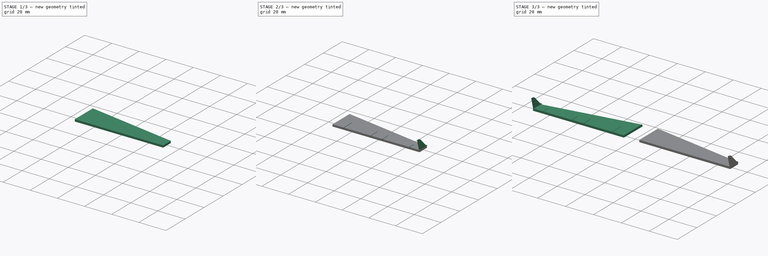
[diagram: build sequence overview — one tinted view per stage of 3, left to right]
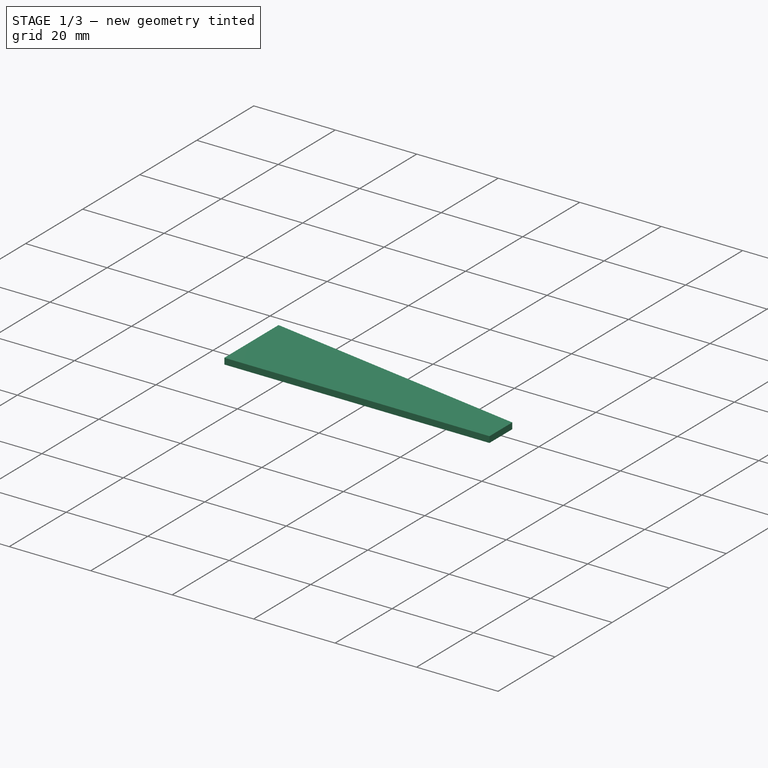
[diagram: stage 1 of 3 — iso view after this stage's code; geometry added in this stage tinted green]
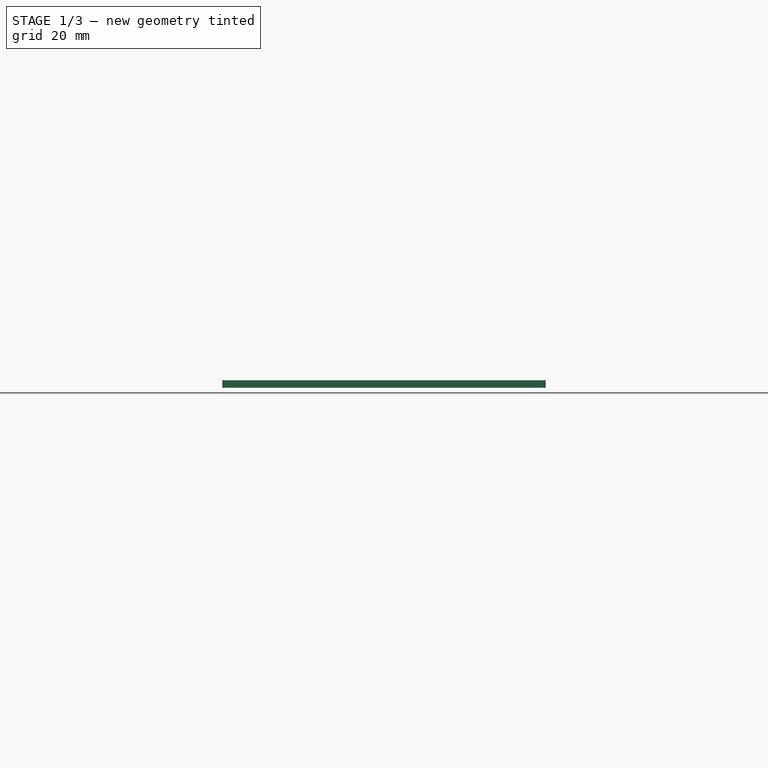
[diagram: stage 1 of 3 — front view after this stage's code; geometry added in this stage tinted green]
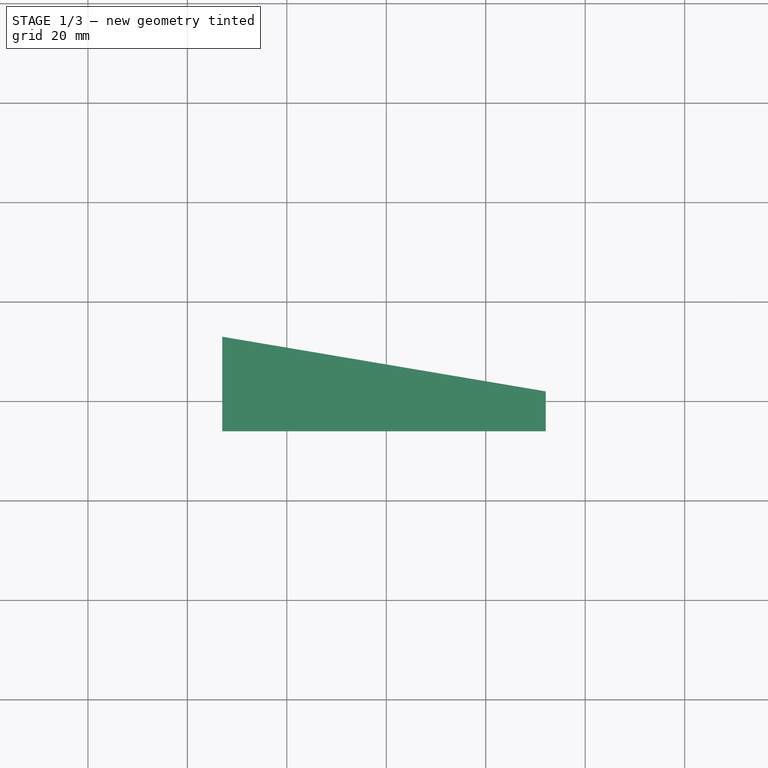
[diagram: stage 1 of 3 — top view after this stage's code; geometry added in this stage tinted green]
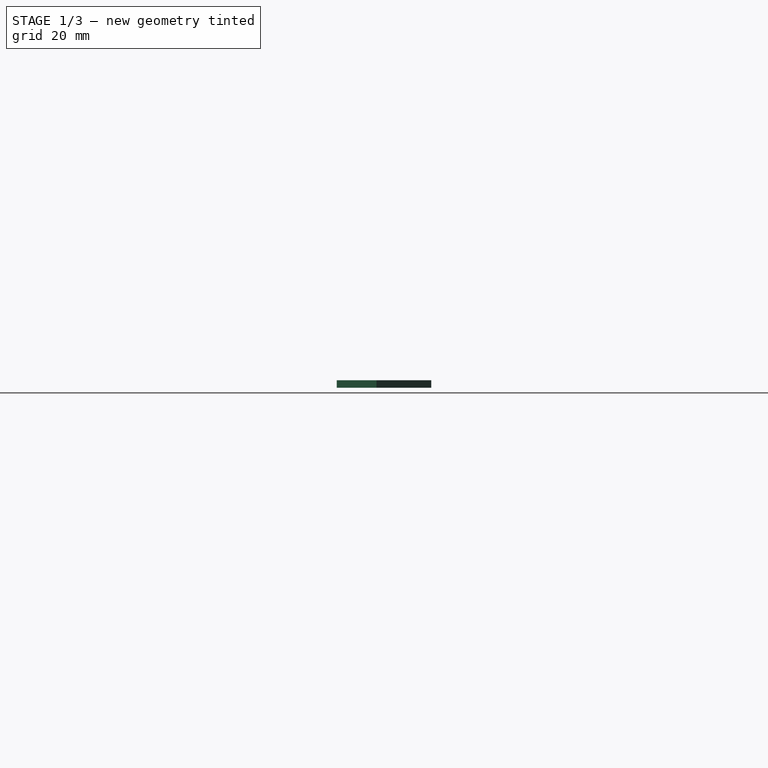
[diagram: stage 1 of 3 — right view after this stage's code; geometry added in this stage tinted green]
FCSTD DOCUMENT  (FreeCAD 0.17R13528 (Git))
Label: plane_wing
License: All rights reserved
LicenseURL: http://en.wikipedia.org/wiki/All_rights_reserved
objects: Sketcher::SketchObject×5, PartDesign::Pad×3, PartDesign::SubtractiveBox×1, PartDesign::Fillet×1, PartDesign::Pocket×1, PartDesign::Body×1, Part::Mirroring×1
note: 18 computed .brp shape members not serialized (recipe doc carries the construction recipe); baked Part::Feature solids carry a one-line shape summary decoded from their .brp

FEATURE [Sketcher::SketchObject] Sketch
  MapMode = 5
  Support = -> [XY_Plane]
  sketch-geometry (4):
    g0: LineSegment StartX=-33 StartY=13 StartZ=0 EndX=-33 EndY=-6 EndZ=0
    g1: LineSegment StartX=-33 StartY=-6 StartZ=0 EndX=32.0769 EndY=-6 EndZ=0
    g2: LineSegment StartX=32.0769 StartY=-6 StartZ=0 EndX=32.0769 EndY=2 EndZ=0
    g3: LineSegment StartX=32.0769 StartY=2 StartZ=0 EndX=-33 EndY=13 EndZ=0
  constraints (12):
    c: Vertical(g0)
    c: Coincident(g0,g1)
    c: Coincident(g1,g2)
    c: Coincident(g2,g3)
    c: Coincident(g3,g0)
    c: DistanceY(g0,g0) = 19
    c: DistanceY(g2,g2) = 8
    c: Distance(g3) = 66
    c: Angle(g1,g0) = 1.5708
    c: DistanceX(g0,g-1) = 33
    c: Angle(g2,g1) = 1.5708
    c: DistanceY(g0,g-1) = 6
FEATURE [PartDesign::Pad] Pad
  Length = 11
  Length2 = 100
  Profile = -> Sketch
  Type = 0
FEATURE [PartDesign::SubtractiveBox] Box
  AttacherType = Attacher::AttachEngine3D
  AttachmentOffset = pos=(-33,-6,0) rot=(0,0,1;0rad)
  BaseFeature = -> Pad
  Height = 9.5
  Length = 66
  MapMode = 5
  Placement = pos=(-33,-6,0) rot=(0,0,1;0rad)
  Support = -> [XY_Plane]
  Width = 19
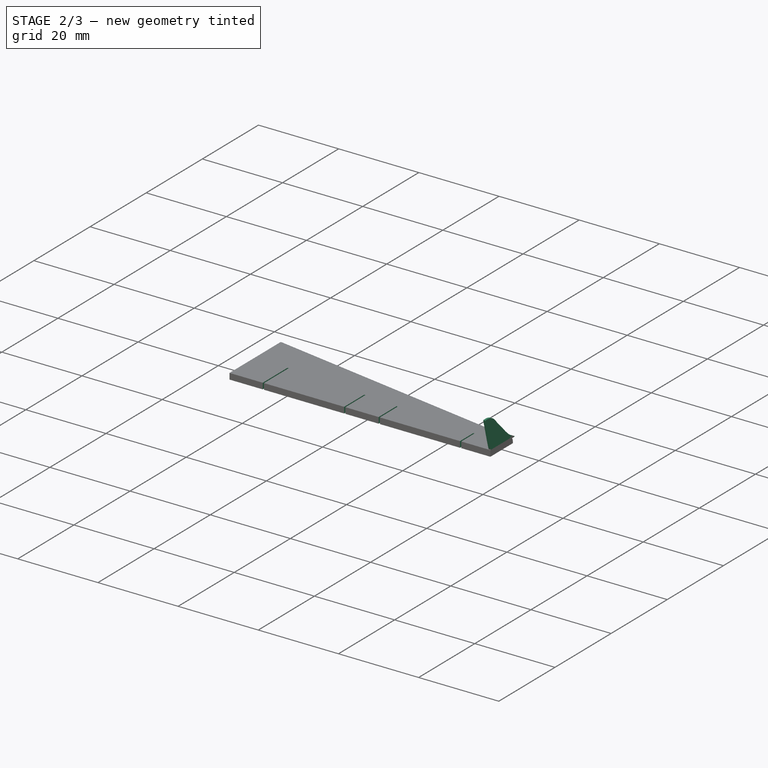
[diagram: stage 2 of 3 — iso view after this stage's code; geometry added in this stage tinted green]
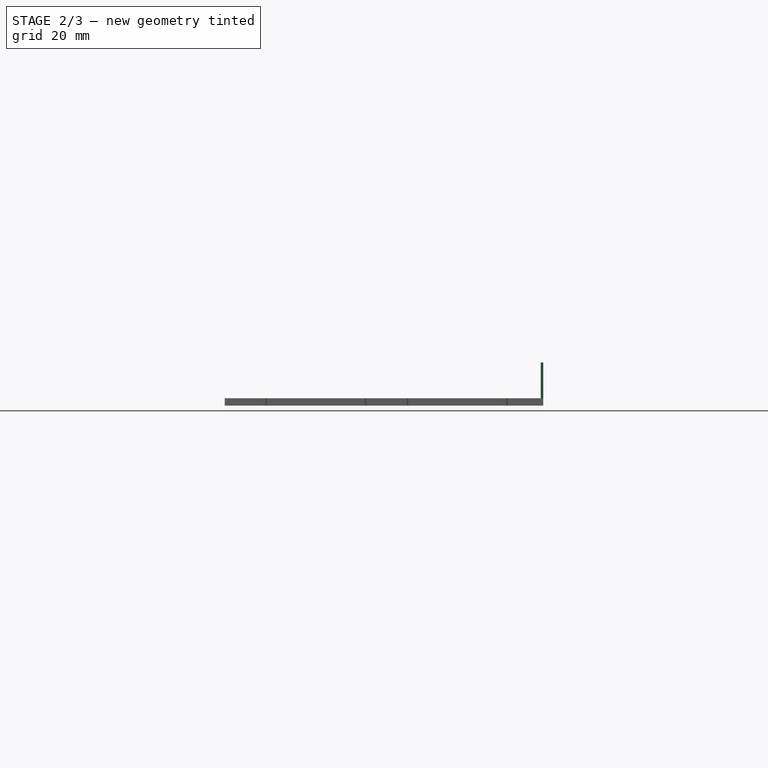
[diagram: stage 2 of 3 — front view after this stage's code; geometry added in this stage tinted green]
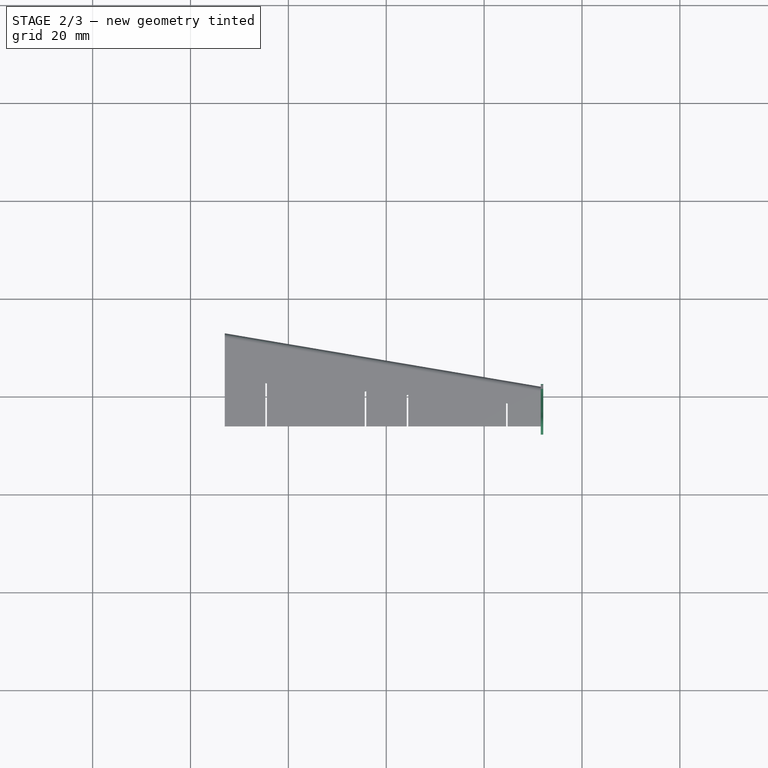
[diagram: stage 2 of 3 — top view after this stage's code; geometry added in this stage tinted green]
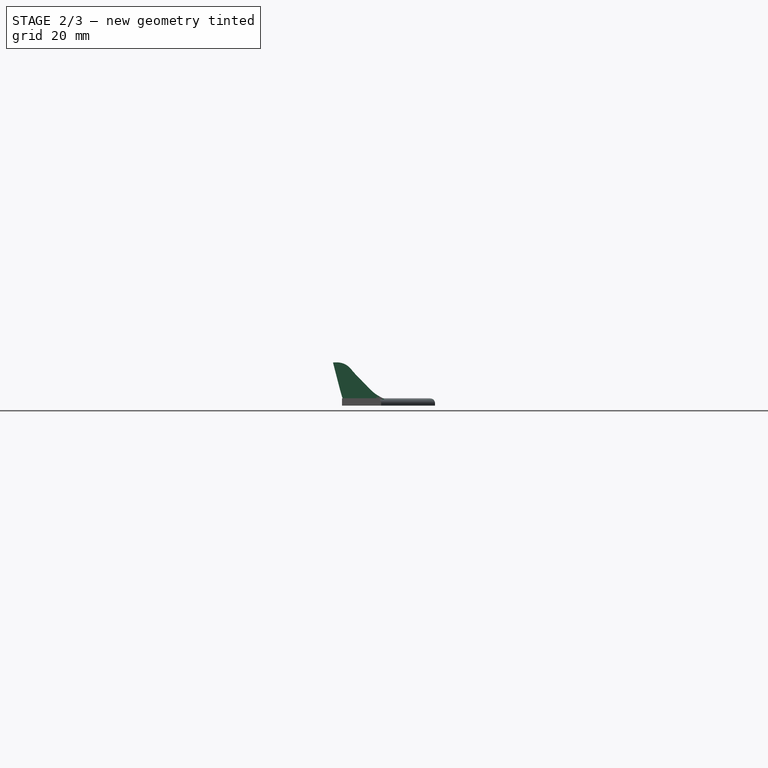
[diagram: stage 2 of 3 — right view after this stage's code; geometry added in this stage tinted green]
FEATURE [PartDesign::Fillet] Fillet
  Base = -> Box [Edge11]
  BaseFeature = -> Box
  Placement = pos=(-33,-6,0) rot=(0,0,1;0rad)
  Radius = 1
FEATURE [Sketcher::SketchObject] Sketch002
  MapMode = 5
  sketch-geometry (4):
    g0: LineSegment StartX=-33 StartY=6 StartZ=0 EndX=-33 EndY=-6 EndZ=0
    g1: LineSegment StartX=-33 StartY=-6 StartZ=0 EndX=32.6277 EndY=-6 EndZ=0
    g2: LineSegment StartX=32.6277 StartY=-6 StartZ=0 EndX=32.6277 EndY=-1 EndZ=0
    g3: LineSegment StartX=32.6277 StartY=-1 StartZ=0 EndX=-33 EndY=6 EndZ=0
  constraints (12):
    c: Vertical(g0)
    c: Coincident(g0,g1)
    c: Coincident(g1,g2)
    c: Coincident(g2,g3)
    c: Coincident(g3,g0)
    c: DistanceY(g0,g0) = 12
    c: DistanceY(g2,g2) = 5
    c: Distance(g3) = 66
    c: Angle(g1,g0) = 1.5708
    c: DistanceX(g0,g-1) = 33
    c: Angle(g2,g1) = 1.5708
    c: DistanceY(g0,g-1) = 6
FEATURE [PartDesign::Pad] Pad002
  BaseFeature = -> Fillet
  Length = 0.5
  Length2 = 100
  Placement = pos=(-33,-6,0) rot=(0,0,1;0rad)
  Profile = -> Sketch001
  Reversed = true
  Type = 0
FEATURE [Sketcher::SketchObject] Sketch003
  MapMode = 45
  Placement = pos=(104.411,-6,63.4538) rot=(0.57735,0.57735,0.57735;4.18879rad)
  Support = -> [Sketch003]
  sketch-geometry (4):
    g0: ArcOfCircle CenterX=64.0576 CenterY=10.5032 CenterZ=0 NormalX=0 NormalY=0 NormalZ=1 AngleXU=0 Radius=0.429121 StartAngle=4.71239 EndAngle=7.85398
    g1: ArcOfCircle CenterX=62.85 CenterY=10.5032 CenterZ=0 NormalX=0 NormalY=0 NormalZ=1 AngleXU=0 Radius=0.429121 StartAngle=1.5708 EndAngle=4.71239
    g2: LineSegment StartX=64.0576 StartY=10.9323 StartZ=0 EndX=62.85 EndY=10.9323 EndZ=0
    g3: LineSegment StartX=64.0576 StartY=10.0741 StartZ=0 EndX=62.85 EndY=10.0741 EndZ=0
  constraints (6):
    c: Tangent(g0,g3) = 1.5708
    c: Tangent(g0,g2) = -1.5708
    c: Tangent(g2,g1) = -1.5708
    c: Tangent(g3,g1) = 1.5708
    c: Horizontal(g2)
    c: Equal(g0,g1)
FEATURE [Sketcher::SketchObject] Sketch004
  MapMode = 5
  Placement = pos=(-33,-6,11) rot=(0,0,1;0rad)
  Support = -> [Pad002]
  sketch-geometry (16):
    g0: LineSegment StartX=8.3 StartY=8.80833 StartZ=0 EndX=8.6 EndY=8.80833 EndZ=0
    g1: LineSegment StartX=8.6 StartY=8.80833 StartZ=0 EndX=8.6 EndY=0 EndZ=0
    g2: LineSegment StartX=8.6 StartY=0 StartZ=0 EndX=8.3 EndY=0 EndZ=0
    g3: LineSegment StartX=8.3 StartY=0 StartZ=0 EndX=8.3 EndY=8.80833 EndZ=0
    g4: LineSegment StartX=57.8 StartY=4.73333 StartZ=0 EndX=57.5 EndY=4.73333 EndZ=0
    g5: LineSegment StartX=57.5 StartY=4.73333 StartZ=0 EndX=57.5 EndY=0 EndZ=0
    g6: LineSegment StartX=57.5 StartY=0 StartZ=0 EndX=57.8 EndY=0 EndZ=0
    g7: LineSegment StartX=57.8 StartY=0 StartZ=0 EndX=57.8 EndY=4.73333 EndZ=0
    g8: LineSegment StartX=28.6 StartY=7.14167 StartZ=0 EndX=28.9 EndY=7.14167 EndZ=0
    g9: LineSegment StartX=28.9 StartY=7.14167 StartZ=0 EndX=28.9 EndY=0 EndZ=0
    g10: LineSegment StartX=28.9 StartY=0 StartZ=0 EndX=28.6 EndY=0 EndZ=0
    g11: LineSegment StartX=28.6 StartY=0 StartZ=0 EndX=28.6 EndY=7.14167 EndZ=0
    g12: LineSegment StartX=37.2 StartY=6.425 StartZ=0 EndX=37.5 EndY=6.425 EndZ=0
    g13: LineSegment StartX=37.5 StartY=6.425 StartZ=0 EndX=37.5 EndY=0 EndZ=0
    g14: LineSegment StartX=37.5 StartY=0 StartZ=0 EndX=37.2 EndY=0 EndZ=0
    g15: LineSegment StartX=37.2 StartY=0 StartZ=0 EndX=37.2 EndY=6.425 EndZ=0
  constraints (48):
    c: Coincident(g0,g1)
    c: Coincident(g1,g2)
    c: Coincident(g2,g3)
    c: Coincident(g3,g0)
    c: Horizontal(g0)
    c: Horizontal(g2)
    c: Vertical(g1)
    c: Vertical(g3)
    c: PointOnObject(g1,g-1)
    c: Coincident(g4,g5)
    c: Coincident(g5,g6)
    c: Coincident(g6,g7)
    c: Coincident(g7,g4)
    c: Horizontal(g4)
    c: Horizontal(g6)
    c: Vertical(g5)
    c: Vertical(g7)
    c: PointOnObject(g5,g-1)
    c: Coincident(g8,g9)
    c: Coincident(g9,g10)
    c: Coincident(g10,g11)
    c: Coincident(g11,g8)
    c: Horizontal(g8)
    c: Horizontal(g10)
    c: Vertical(g9)
    c: Vertical(g11)
    c: PointOnObject(g9,g-1)
    c: Coincident(g12,g13)
    c: Coincident(g13,g14)
    c: Coincident(g14,g15)
    c: Coincident(g15,g12)
    c: Horizontal(g12)
    c: Horizontal(g14)
    c: Vertical(g13)
    c: Vertical(g15)
    c: PointOnObject(g13,g-1)
    c: DistanceX(g-1,g2) = 8.3
    c: DistanceX(g0,g0) = 0.3
    c: DistanceX(g8,g8) = 0.3
    c: DistanceX(g12,g12) = 0.3
    c: DistanceX(g4,g4) = 0.3
    c: DistanceY(g1,g1) = 8.80833
    c: DistanceX(g1,g10) = 20
    c: DistanceX(g13,g5) = 20
    c: DistanceX(g9,g14) = 8.3
    c: DistanceY(g11,g11) = 7.14167
    c: DistanceY(g15,g15) = 6.425
    c: DistanceY(g5,g5) = 4.73333
FEATURE [PartDesign::Pocket] Pocket
  BaseFeature = -> Pad002
  Length = 2
  Length2 = 100
  Placement = pos=(-33,-6,0) rot=(0,0,1;0rad)
  Profile = -> Sketch004
  Type = 0
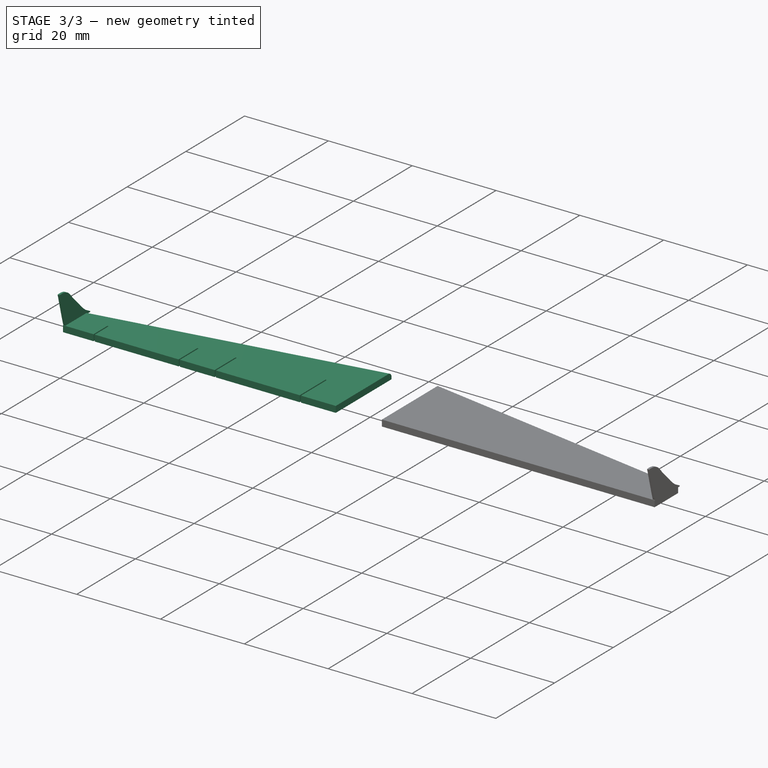
[diagram: stage 3 of 3 — iso view after this stage's code; geometry added in this stage tinted green]
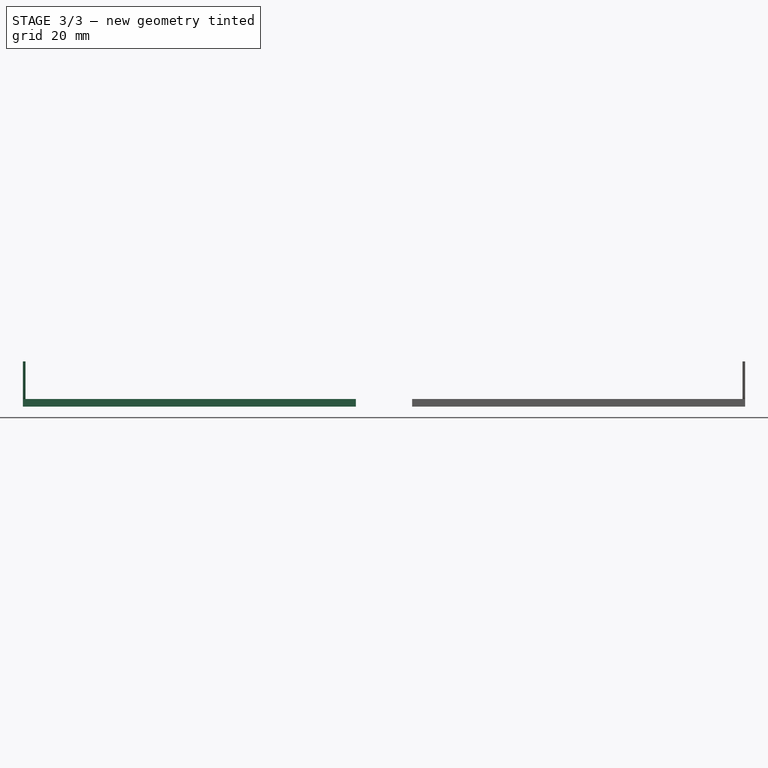
[diagram: stage 3 of 3 — front view after this stage's code; geometry added in this stage tinted green]
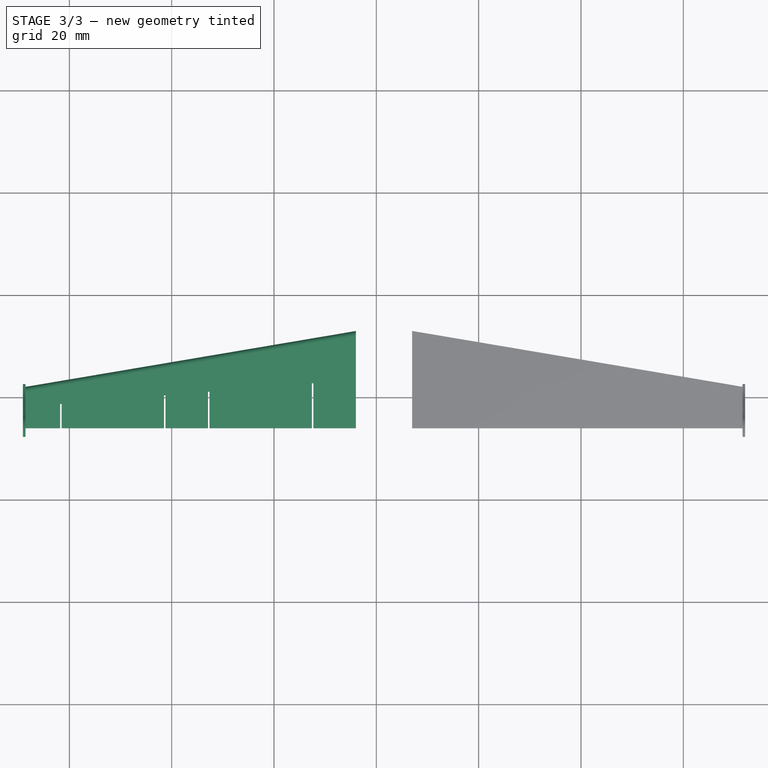
[diagram: stage 3 of 3 — top view after this stage's code; geometry added in this stage tinted green]
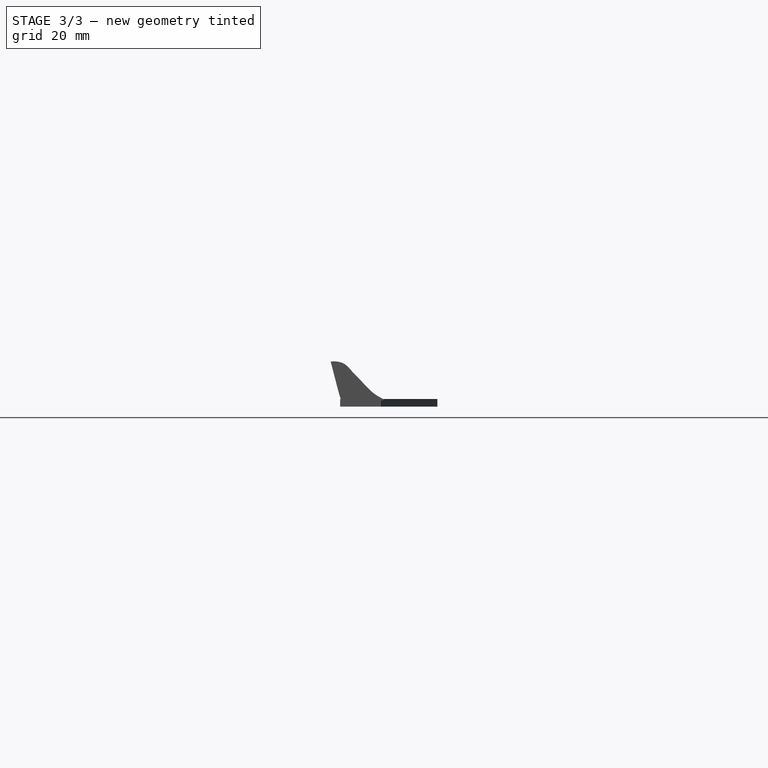
[diagram: stage 3 of 3 — right view after this stage's code; geometry added in this stage tinted green]
FEATURE [Sketcher::SketchObject] Sketch001
  MapMode = 5
  Placement = pos=(32.0769,-6,0) rot=(0.57735,0.57735,0.57735;2.0944rad)
  Support = -> [Box]
  sketch-geometry (19):
    g0-g9: Circle [constr] x10 (B-spline internal-alignment scaffolding for g10; pole/knot coordinates omitted)
    g10: BSplineCurve PolesCount=10 KnotsCount=8 Degree=3 IsPeriodic=0
    g11-g18: GeomPoint [constr] x8 (B-spline internal-alignment scaffolding for g10; pole/knot coordinates omitted)
  constraints (5):
    c: Radius(g0) = 0.9
    c: Equal(g0, g1-g9) x9
    c: Coincident(g9,g0)
    c: InternalAlignment(g0-g9 -> g10) x10
    c: InternalAlignment(g11-g18 -> g10) x8
FEATURE [PartDesign::Pad] Pad001
  BaseFeature = -> Box
  Length = 0.5
  Length2 = 100
  Placement = pos=(-33,-6,0) rot=(0,0,1;0rad)
  Profile = -> Sketch001
  Reversed = true
  Type = 0
FEATURE [PartDesign::Body] Body  label="wing"
  Group = -> [Sketch,Pad,Box,Sketch001,Pad001,Fillet,Pad002,Sketch004,Pocket]
  Origin = -> Origin
  Tip = -> Pocket
FEATURE [Part::Mirroring] Part__Mirroring  label="Pocket (Mirror #1)"
  Base = (-5,-7,-7)
  Normal = (0,1,0)
  Placement = pos=(-77,-14,0) rot=(0,0,1;3.14159rad)
  Source = -> Pocket
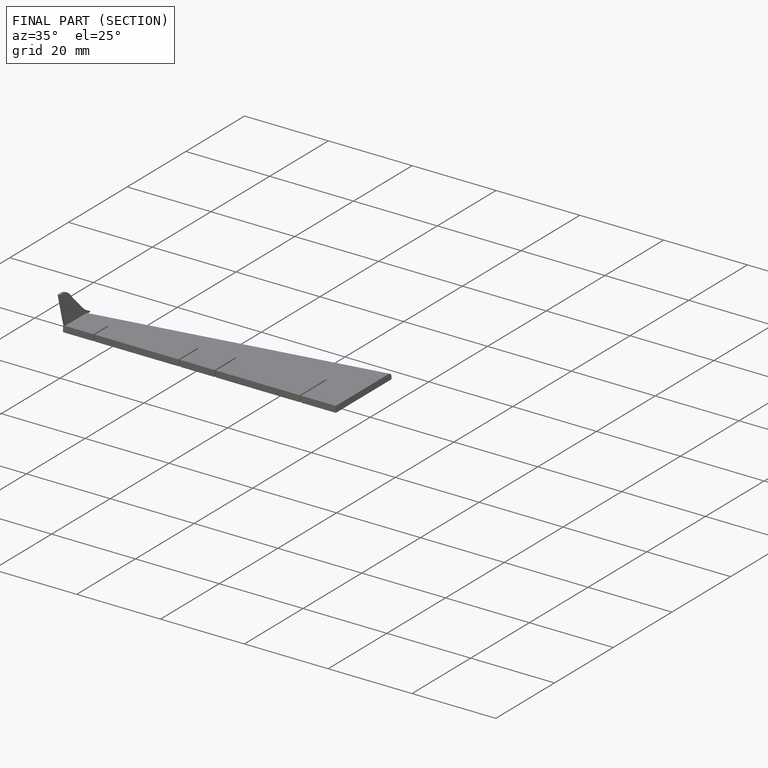
[diagram: finished part — half-section view (interior)]
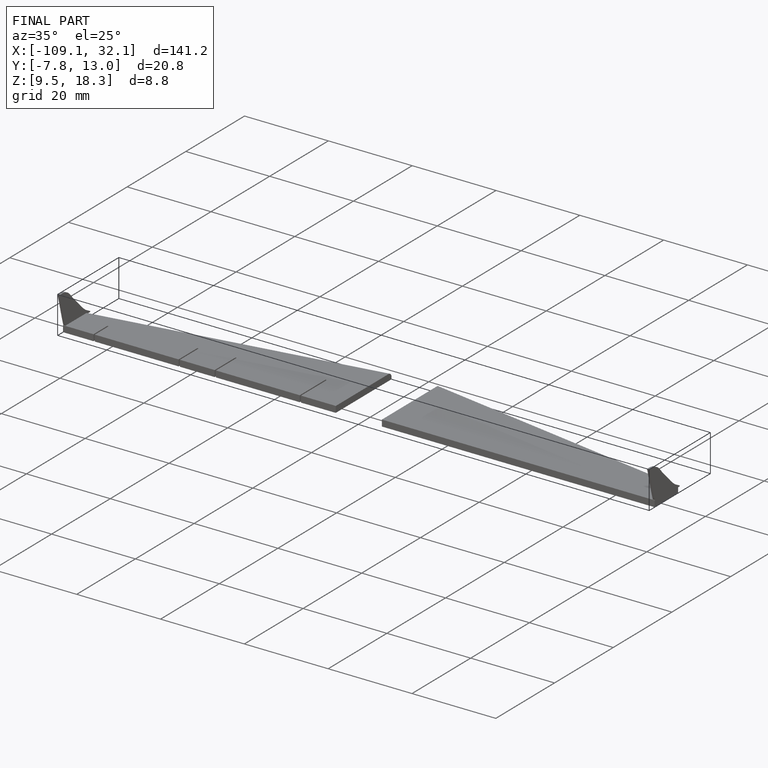
[diagram: finished part — iso view with bounding-box wireframe]
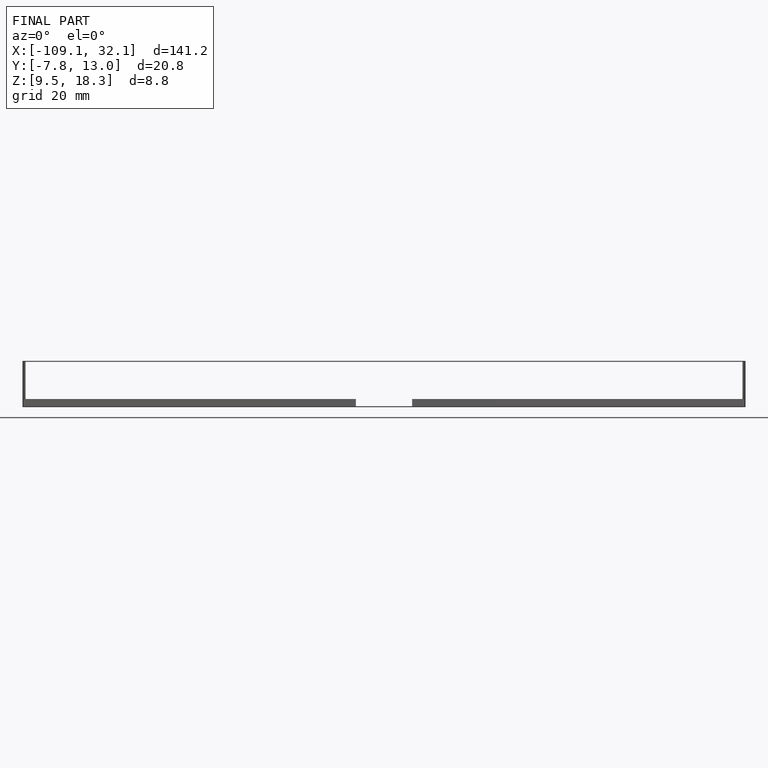
[diagram: finished part — front view with bounding-box wireframe]
